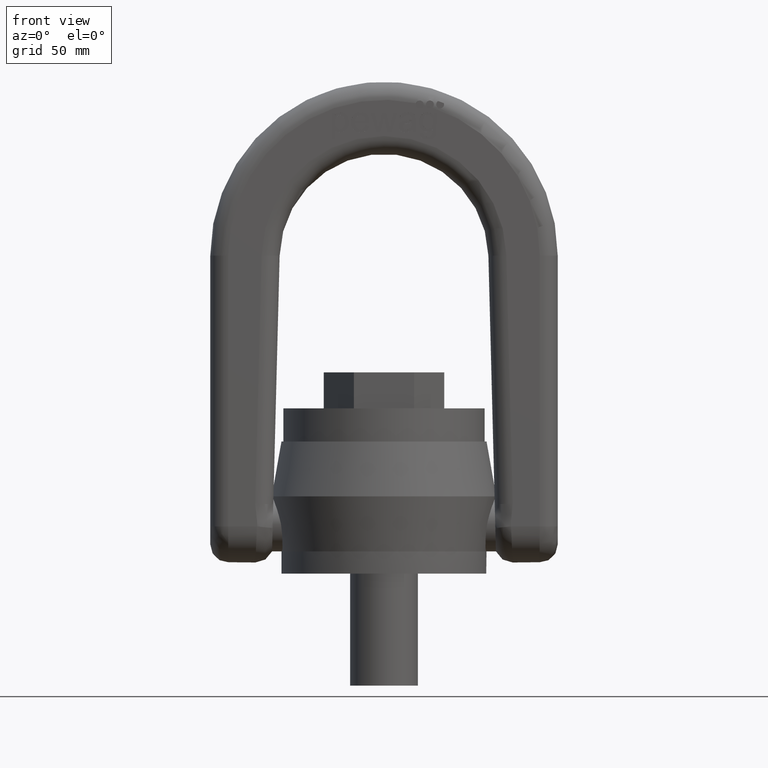
[diagram: clean part render]
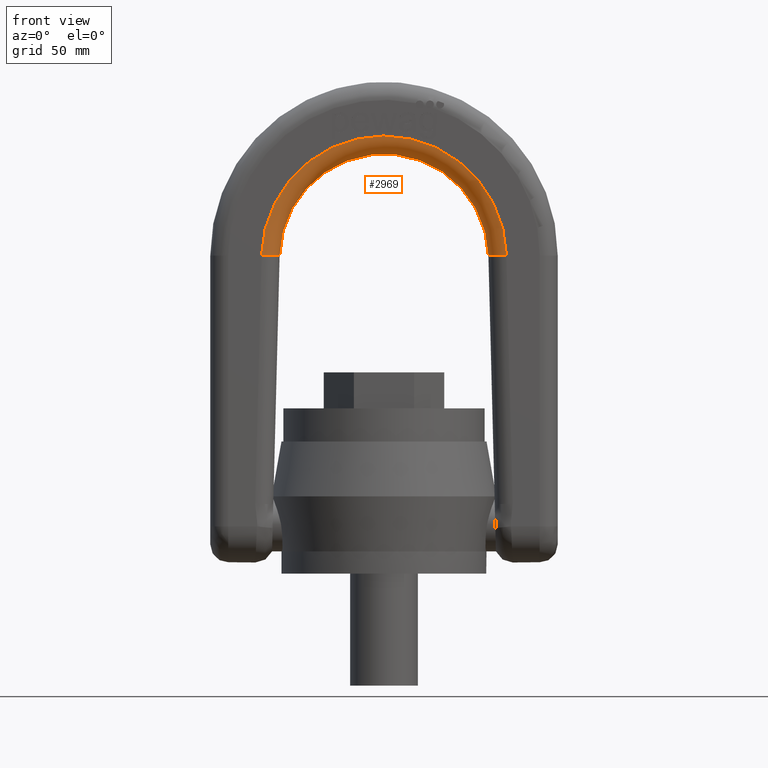
[diagram: same view with one face highlighted and labeled with its STEP entity id]
A machine part, front view. The second image highlights one B-rep face of the part: STEP entity #2969.
In plain terms, the highlighted toroidal blend (fillet) surface has major radius 64.5 mm and minor (blend) radius 9.5 mm.
Its self-contained STEP definition (entity closure, byte-faithful):
#211=TOROIDAL_SURFACE('',#5796,64.5,9.5);
#2615=FACE_OUTER_BOUND('',#3325,.T.);
#2969=ADVANCED_FACE('',(#2615),#211,.T.);
#3325=EDGE_LOOP('',(#4497,#4498,#4499,#4500));
#4497=ORIENTED_EDGE('',*,*,#5537,.T.);
#4498=ORIENTED_EDGE('',*,*,#5085,.F.);
#4499=ORIENTED_EDGE('',*,*,#5538,.T.);
#4500=ORIENTED_EDGE('',*,*,#5026,.F.);
#4613=VERTEX_POINT('',#6871);
#4614=VERTEX_POINT('',#6873);
#4668=VERTEX_POINT('',#7072);
#4670=VERTEX_POINT('',#7078);
#5026=EDGE_CURVE('',#4613,#4614,#5559,.T.);
#5085=EDGE_CURVE('',#4670,#4668,#5567,.T.);
#5537=EDGE_CURVE('',#4613,#4668,#5593,.T.);
#5538=EDGE_CURVE('',#4670,#4614,#5594,.T.);
#5559=CIRCLE('',#5641,64.5);
#5567=CIRCLE('',#5653,55.);
#5593=CIRCLE('',#5794,9.5);
#5594=CIRCLE('',#5795,9.5);
#5641=AXIS2_PLACEMENT_3D('',#6872,#5935,#5936);
#5653=AXIS2_PLACEMENT_3D('',#7079,#5991,#5992);
#5794=AXIS2_PLACEMENT_3D('',#9625,#6562,#6563);
#5795=AXIS2_PLACEMENT_3D('',#9626,#6564,#6565);
#5796=AXIS2_PLACEMENT_3D('',#9627,#6566,#6567);
#5935=DIRECTION('',(0.,1.,0.));
#5936=DIRECTION('',(0.,0.,1.));
#5991=DIRECTION('',(0.,-1.,0.));
#5992=DIRECTION('',(0.,0.,1.));
#6562=DIRECTION('',(0.0255100308212759,0.,0.999674566210173));
#6563=DIRECTION('',(-0.999674566210172,0.,0.0255100308212759));
#6564=DIRECTION('',(-0.0255100308212788,0.,0.999674566210173));
#6565=DIRECTION('',(-0.999674566210173,0.,-0.0255100308212788));
#6566=DIRECTION('',(0.,1.,0.));
#6567=DIRECTION('',(0.,0.,1.));
#6871=CARTESIAN_POINT('',(-64.4790095205561,-19.,167.645396987972));
#6872=CARTESIAN_POINT('',(0.,-19.,166.));
#6873=CARTESIAN_POINT('',(64.4790095205561,-19.,167.645396987972));
#7072=CARTESIAN_POINT('',(-54.9821011415595,-9.5,167.40305169517));
#7078=CARTESIAN_POINT('',(54.9821011415595,-9.5,167.40305169517));
#7079=CARTESIAN_POINT('',(0.,-9.5,166.));
#9625=CARTESIAN_POINT('',(-64.4790095205561,-9.5,167.645396987972));
#9626=CARTESIAN_POINT('',(64.4790095205561,-9.5,167.645396987972));
#9627=CARTESIAN_POINT('',(0.,-9.5,166.));